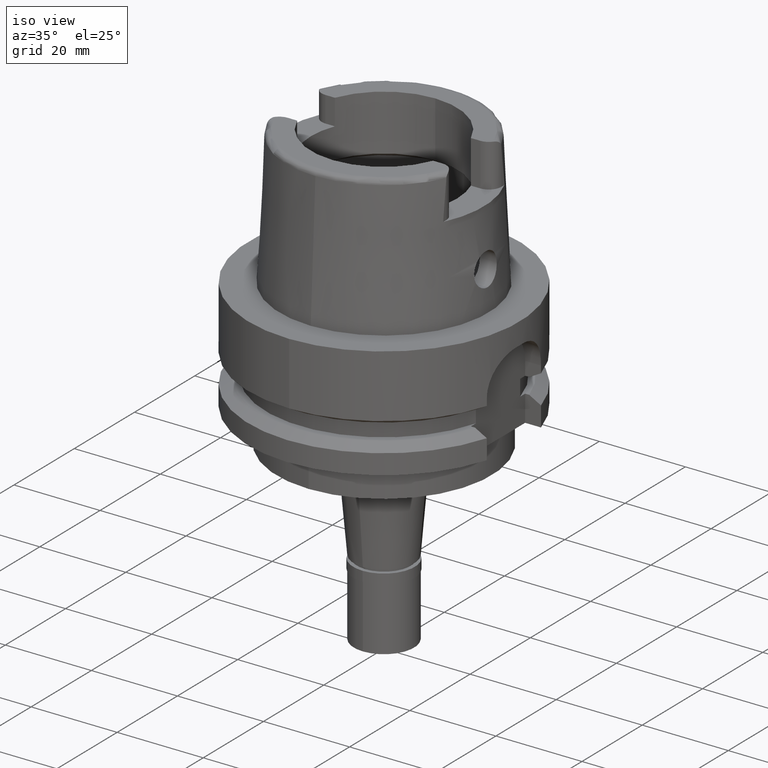
[diagram: clean part render]
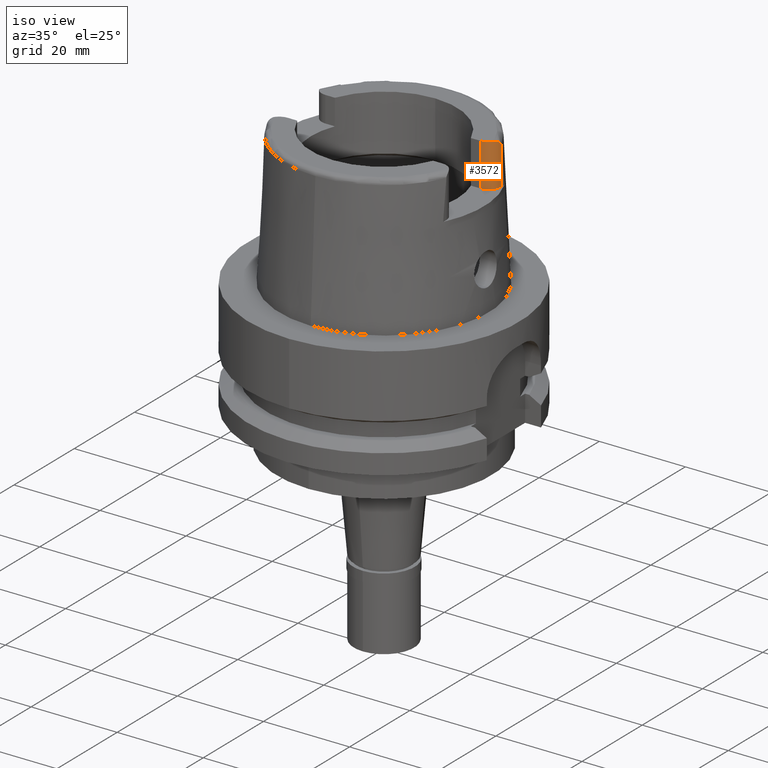
[diagram: same view with one face highlighted and labeled with its STEP entity id]
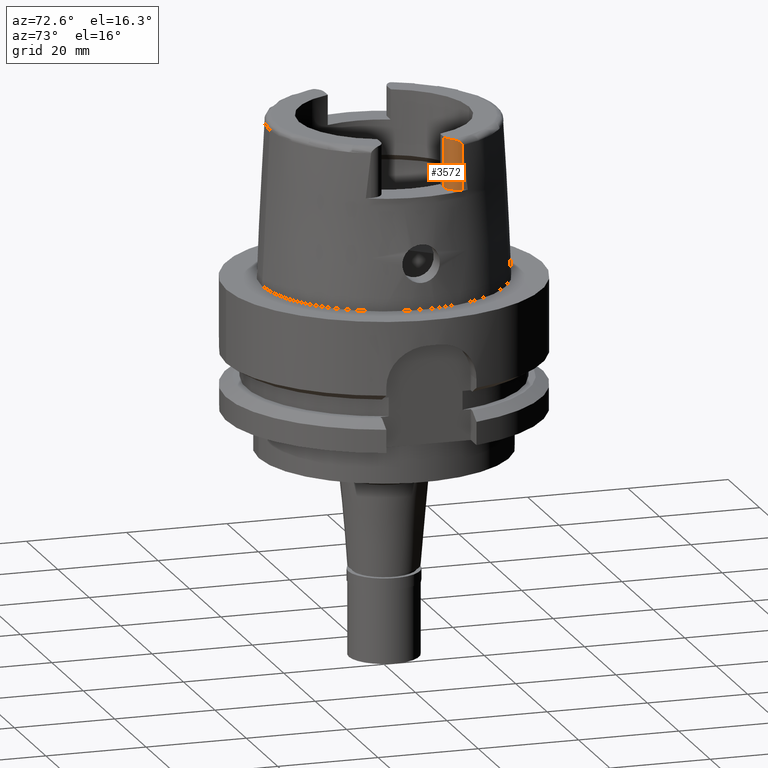
[diagram: same view with one face highlighted and labeled with its STEP entity id]
A machine part, iso view. The second image highlights one B-rep face of the part: STEP entity #3572.
A second angle (auxiliary view) of the same face is appended — the face is thin or edge-on in the first view.
In plain terms, the highlighted cylindrical surface (edge-blend (fillet) strip) has radius 2.88 mm, axis along (0, 0, 1).
Its self-contained STEP definition (entity closure, byte-faithful):
#9 = CARTESIAN_POINT ( 'NONE',  ( 17.98999999999999844, 6.270000000000000462, 22.00000000000000000 ) ) ;
#253 = VERTEX_POINT ( 'NONE', #1785 ) ;
#273 = CARTESIAN_POINT ( 'NONE',  ( 20.75962881835868146, 8.360254251696886740, 31.68880140601152462 ) ) ;
#659 = CARTESIAN_POINT ( 'NONE',  ( 20.66043568231586036, 8.071399213117315341, 31.83486621594638066 ) ) ;
#691 = DIRECTION ( 'NONE',  ( 1.000000000000000000, 0.0000000000000000000, 0.0000000000000000000 ) ) ;
#785 = DIRECTION ( 'NONE',  ( 0.0000000000000000000, 0.0000000000000000000, 1.000000000000000000 ) ) ;
#908 = CIRCLE ( 'NONE', #1627, 2.880000000000000782 ) ;
#959 = VERTEX_POINT ( 'NONE', #1867 ) ;
#1078 = EDGE_LOOP ( 'NONE', ( #4298, #3351, #3652, #4743, #4720, #1511 ) ) ;
#1097 = CARTESIAN_POINT ( 'NONE',  ( 20.75679486914388860, 8.350352098577111803, 31.69451662235955069 ) ) ;
#1142 = VERTEX_POINT ( 'NONE', #2031 ) ;
#1257 = CARTESIAN_POINT ( 'NONE',  ( 20.86974092012000170, 9.111384045666000020, 30.85992712280000205 ) ) ;
#1307 = DIRECTION ( 'NONE',  ( 0.0000000000000000000, 0.0000000000000000000, -1.000000000000000000 ) ) ;
#1356 = CARTESIAN_POINT ( 'NONE',  ( 20.84176050136753489, 8.746179893545061645, 31.41849180054708057 ) ) ;
#1364 = DIRECTION ( 'NONE',  ( -2.727944260500930629E-07, 6.127272855516851114E-07, -0.9999999999997751798 ) ) ;
#1414 = CARTESIAN_POINT ( 'NONE',  ( 20.86130815856597209, 8.922080393297452616, 31.24625966189476145 ) ) ;
#1511 = ORIENTED_EDGE ( 'NONE', *, *, #1783, .T. ) ;
#1522 = CARTESIAN_POINT ( 'NONE',  ( 20.64452653711106933, 8.032798316843441810, 31.85127630348784322 ) ) ;
#1627 = AXIS2_PLACEMENT_3D ( 'NONE', #4687, #785, #1672 ) ;
#1672 = DIRECTION ( 'NONE',  ( 0.0000000000000000000, -1.000000000000000000, 0.0000000000000000000 ) ) ;
#1696 = CARTESIAN_POINT ( 'NONE',  ( 20.86979783655000276, 9.115619586687000009, 30.82499216162000266 ) ) ;
#1731 = VECTOR ( 'NONE', #4672, 1000.000000000000000 ) ;
#1749 = CARTESIAN_POINT ( 'NONE',  ( 20.86974092012000170, 9.111384045666000020, 30.85992712280000205 ) ) ;
#1783 = EDGE_CURVE ( 'NONE', #959, #4669, #2614, .T. ) ;
#1785 = CARTESIAN_POINT ( 'NONE',  ( 20.87000000000000099, 9.150000000000000355, 22.00000000000000000 ) ) ;
#1837 = CIRCLE ( 'NONE', #4988, 2.880000000000003446 ) ;
#1861 = CARTESIAN_POINT ( 'NONE',  ( 20.82117511483225769, 8.621854786063344989, 31.51710009595523587 ) ) ;
#1867 = CARTESIAN_POINT ( 'NONE',  ( 20.87000233117000292, 9.149994763924999219, 30.54552228658999979 ) ) ;
#1881 = CARTESIAN_POINT ( 'NONE',  ( 17.98999999999999844, 6.270000000000000462, 32.00000000000000000 ) ) ;
#1887 = CARTESIAN_POINT ( 'NONE',  ( 20.67643188278520228, 8.111291756052880331, 31.81741482084855832 ) ) ;
#1948 = CARTESIAN_POINT ( 'NONE',  ( 20.81957924228601797, 8.613347548248855290, 31.52340741052019624 ) ) ;
#1972 = CARTESIAN_POINT ( 'NONE',  ( 20.26871835884000106, 7.388795116668999796, 32.00000000000000000 ) ) ;
#2022 = EDGE_CURVE ( 'NONE', #4496, #2783, #1837, .T. ) ;
#2031 = CARTESIAN_POINT ( 'NONE',  ( 17.98999999999999844, 6.270000000000000462, 22.00000000000000000 ) ) ;
#2093 = EDGE_CURVE ( 'NONE', #4669, #4496, #3837, .T. ) ;
#2351 = CARTESIAN_POINT ( 'NONE',  ( 20.41216730585300354, 7.574395186371555511, 32.00000000000000000 ) ) ;
#2381 = CARTESIAN_POINT ( 'NONE',  ( 20.82459119405498527, 8.640507448105905652, 31.50309154760962116 ) ) ;
#2440 = CARTESIAN_POINT ( 'NONE',  ( 20.86974092012000170, 9.111384045666000020, 30.85992712280000205 ) ) ;
#2471 = CARTESIAN_POINT ( 'NONE',  ( 20.87000233117000292, 9.149994763924999219, 30.54552228658999979 ) ) ;
#2606 = CARTESIAN_POINT ( 'NONE',  ( 20.86839841667074325, 9.053205861683123246, 31.04974976831375599 ) ) ;
#2614 = B_SPLINE_CURVE_WITH_KNOTS ( 'NONE', 3,
 ( #2471, #5480, #4260, #4605, #1696, #2440 ),
 .UNSPECIFIED., .F., .F.,
 ( 4, 1, 1, 4 ),
 ( 0.0000000000000000000, 0.3333333333333000081, 0.6666666666667000474, 1.000000000000000000 ),
 .UNSPECIFIED. ) ;
#2783 = VERTEX_POINT ( 'NONE', #1881 ) ;
#2804 = CARTESIAN_POINT ( 'NONE',  ( 17.98999999999999844, 9.150000000000000355, 32.00000000000000000 ) ) ;
#3086 = EDGE_CURVE ( 'NONE', #959, #253, #4830, .T. ) ;
#3122 = CARTESIAN_POINT ( 'NONE',  ( 20.83382636247885955, 8.694638847776234414, 31.46090459169371911 ) ) ;
#3148 = CARTESIAN_POINT ( 'NONE',  ( 20.78400639388914328, 8.451109407922478667, 31.63407235421447083 ) ) ;
#3152 = VECTOR ( 'NONE', #1364, 999.9999999999998863 ) ;
#3182 = CARTESIAN_POINT ( 'NONE',  ( 20.73731040765902023, 8.284127405039598102, 31.73204755809619471 ) ) ;
#3235 = CARTESIAN_POINT ( 'NONE',  ( 20.53874229073553437, 7.785265070956997491, 31.95240841711610713 ) ) ;
#3252 = EDGE_CURVE ( 'NONE', #1142, #253, #908, .T. ) ;
#3264 = CARTESIAN_POINT ( 'NONE',  ( 20.76607232047233964, 8.383211495943596603, 31.67537517609221709 ) ) ;
#3265 = CYLINDRICAL_SURFACE ( 'NONE', #4609, 2.880000000000000782 ) ;
#3351 = ORIENTED_EDGE ( 'NONE', *, *, #2022, .T. ) ;
#3484 = CARTESIAN_POINT ( 'NONE',  ( 20.84610926132162589, 8.778552440481009356, 31.39004454151158541 ) ) ;
#3546 = CARTESIAN_POINT ( 'NONE',  ( 20.86965375660295763, 9.104870443090788967, 30.91364877694325841 ) ) ;
#3572 = ADVANCED_FACE ( 'NONE', ( #5414 ), #3265, .T. ) ;
#3633 = CARTESIAN_POINT ( 'NONE',  ( 20.80007794100184881, 8.517591017895492556, 31.59133574736901906 ) ) ;
#3652 = ORIENTED_EDGE ( 'NONE', *, *, #4680, .F. ) ;
#3687 = CARTESIAN_POINT ( 'NONE',  ( 20.64954228288481985, 8.044811673786995243, 31.84624062466058447 ) ) ;
#3837 = B_SPLINE_CURVE_WITH_KNOTS ( 'NONE', 3,
 ( #1749, #3546, #5184, #2606, #5207, #5272, #4338, #1414, #4372, #3484, #1356, #3122, #4847, #2381, #1861, #1948, #4108, #3633, #3148, #4961, #3264, #273, #1097, #3182, #4511, #1887, #659, #3687, #1522, #3235, #2351, #1972 ),
 .UNSPECIFIED., .F., .F.,
 ( 4, 2, 2, 2, 2, 2, 1, 2, 2, 2, 1, 2, 2, 1, 1, 2, 2, 4 ),
 ( 0.0000000000000000000, 0.1250000000000114631, 0.1875000000000205391, 0.2500000000000295874, 0.3750000000000477396, 0.4375000000000570100, 0.4687500000000585643, 0.4843750000000556222, 0.5000000000000526246, 0.5625000000000440759, 0.5937500000000414113, 0.6093750000000401901, 0.6250000000000389688, 0.6875000000000383027, 0.7187500000000379696, 0.7343750000000370814, 0.7500000000000360822, 1.000000000000000000 ),
 .UNSPECIFIED. ) ;
#3926 = CARTESIAN_POINT ( 'NONE',  ( 20.87000233117000292, 9.149994763924999219, 30.54552228658999979 ) ) ;
#4108 = CARTESIAN_POINT ( 'NONE',  ( 20.80941266251504729, 8.560809949173641797, 31.56175226854421467 ) ) ;
#4260 = CARTESIAN_POINT ( 'NONE',  ( 20.86997922676000172, 9.137000529193000986, 30.65041110618000175 ) ) ;
#4298 = ORIENTED_EDGE ( 'NONE', *, *, #2093, .T. ) ;
#4338 = CARTESIAN_POINT ( 'NONE',  ( 20.86554310421545821, 8.988317199614035857, 31.15833691072261402 ) ) ;
#4372 = CARTESIAN_POINT ( 'NONE',  ( 20.85696498673094013, 8.869562175914278868, 31.30418656959200874 ) ) ;
#4394 = DIRECTION ( 'NONE',  ( 0.7912216523763718756, -0.6115294733786784676, 0.0000000000000000000 ) ) ;
#4459 = DIRECTION ( 'NONE',  ( 0.0000000000000000000, 0.0000000000000000000, 1.000000000000000000 ) ) ;
#4496 = VERTEX_POINT ( 'NONE', #4535 ) ;
#4511 = CARTESIAN_POINT ( 'NONE',  ( 20.71137145563871229, 8.204407896461848537, 31.77396642476836064 ) ) ;
#4535 = CARTESIAN_POINT ( 'NONE',  ( 20.26871835884000106, 7.388795116668999796, 32.00000000000000000 ) ) ;
#4605 = CARTESIAN_POINT ( 'NONE',  ( 20.86989360828000173, 9.124124435178998738, 30.75511465747000273 ) ) ;
#4609 = AXIS2_PLACEMENT_3D ( 'NONE', #2804, #4459, #691 ) ;
#4669 = VERTEX_POINT ( 'NONE', #1257 ) ;
#4672 = DIRECTION ( 'NONE',  ( 0.0000000000000000000, 0.0000000000000000000, 1.000000000000000000 ) ) ;
#4680 = EDGE_CURVE ( 'NONE', #1142, #2783, #5173, .T. ) ;
#4687 = CARTESIAN_POINT ( 'NONE',  ( 17.98999999999999844, 9.150000000000000355, 22.00000000000000000 ) ) ;
#4720 = ORIENTED_EDGE ( 'NONE', *, *, #3086, .F. ) ;
#4743 = ORIENTED_EDGE ( 'NONE', *, *, #3252, .T. ) ;
#4793 = CARTESIAN_POINT ( 'NONE',  ( 17.98999999999999844, 9.150000000000000355, 32.00000000000000000 ) ) ;
#4830 = LINE ( 'NONE', #3926, #3152 ) ;
#4847 = CARTESIAN_POINT ( 'NONE',  ( 20.82950595600309285, 8.668123182715110175, 31.48204646291541309 ) ) ;
#4961 = CARTESIAN_POINT ( 'NONE',  ( 20.77545310863051498, 8.417455750018616456, 31.65503100478927934 ) ) ;
#4988 = AXIS2_PLACEMENT_3D ( 'NONE', #4793, #1307, #4394 ) ;
#5173 = LINE ( 'NONE', #9, #1731 ) ;
#5184 = CARTESIAN_POINT ( 'NONE',  ( 20.86946642000694041, 9.089507543669469669, 30.96782011327707451 ) ) ;
#5207 = CARTESIAN_POINT ( 'NONE',  ( 20.86790360307099945, 9.038896007748085992, 31.07717176174862317 ) ) ;
#5272 = CARTESIAN_POINT ( 'NONE',  ( 20.86643864316265606, 9.005868193017834145, 31.13223996546366479 ) ) ;
#5414 = FACE_OUTER_BOUND ( 'NONE', #1078, .T. ) ;
#5480 = CARTESIAN_POINT ( 'NONE',  ( 20.87000233117000292, 9.145647684069000860, 30.58043093308000238 ) ) ;